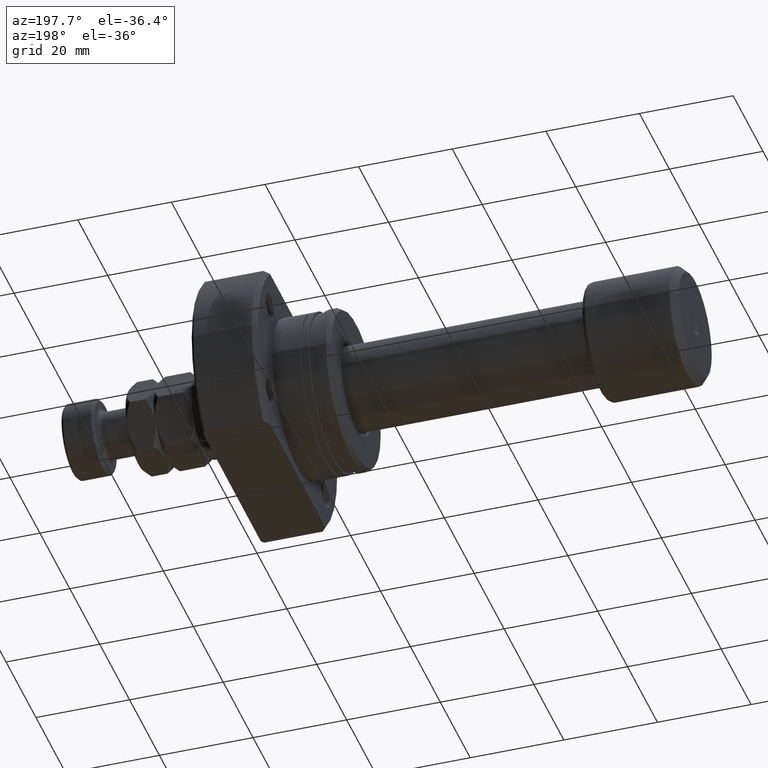
[diagram: clean part render]
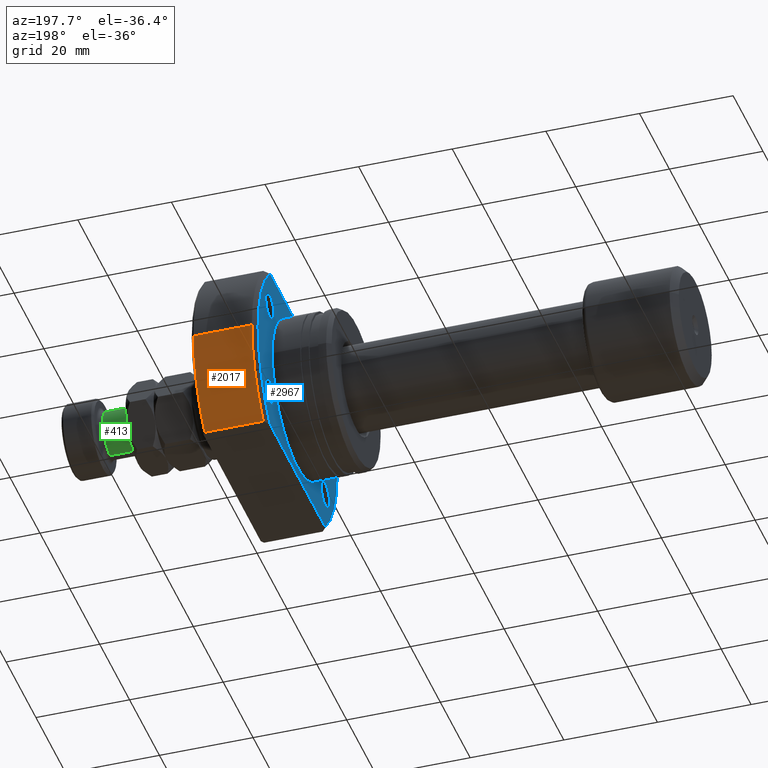
[diagram: same view with three faces highlighted in distinct colors, each labeled with its STEP entity id]
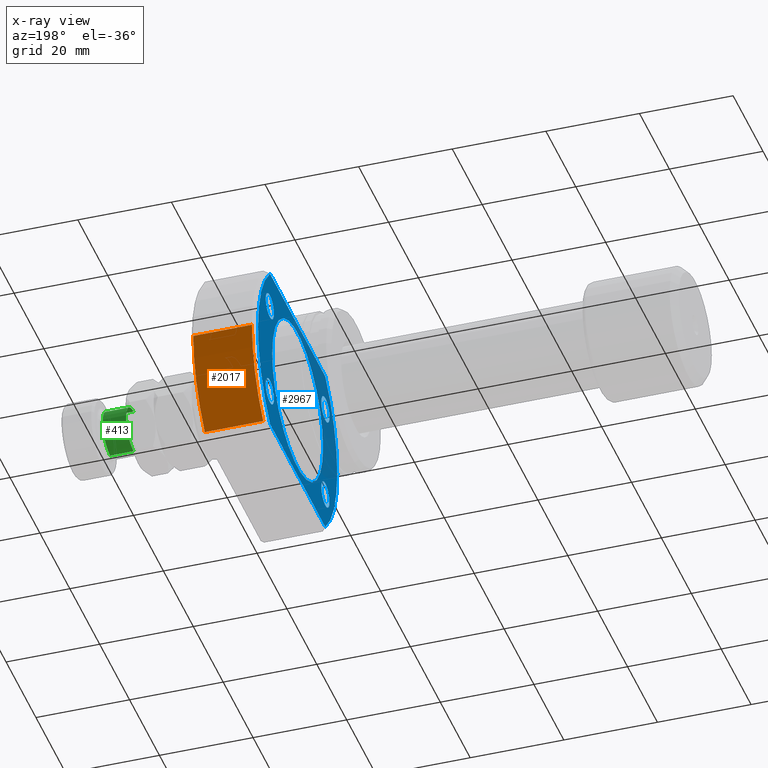
[diagram: x-ray of the same camera — body ghosted, the three highlighted faces saturated]
A machine part, auxiliary view with three faces highlighted in distinct colors.
The next image is the same camera in x-ray (body ghosted, the three faces saturated) — at least one of them is partly hidden behind the body in this view.
Their STEP definitions:

[orange] entity #2017 — the highlighted cylindrical surface (partial cylindrical patch) has radius 27.5 mm, axis along (1, 0, 0).
#44 = EDGE_CURVE ( 'NONE', #3843, #1954, #2917, .T. ) ;
#141 = CYLINDRICAL_SURFACE ( 'NONE', #4680, 27.49999999999991473 ) ;
#571 = CARTESIAN_POINT ( 'NONE',  ( 26.00000000000008882, 2.403080511534438786E-16, 0.000000000000000000 ) ) ;
#851 = CARTESIAN_POINT ( 'NONE',  ( 13.49999999999998757, 19.88089535207129543, -18.99999999999999645 ) ) ;
#915 = AXIS2_PLACEMENT_3D ( 'NONE', #571, #4804, #4418 ) ;
#1309 = ORIENTED_EDGE ( 'NONE', *, *, #4137, .F. ) ;
#1326 = EDGE_CURVE ( 'NONE', #1954, #3507, #2685, .T. ) ;
#1370 = CARTESIAN_POINT ( 'NONE',  ( -2.151057110211240797E-13, 19.88089535207168268, -18.99999999999999645 ) ) ;
#1509 = AXIS2_PLACEMENT_3D ( 'NONE', #2397, #3959, #1712 ) ;
#1575 = DIRECTION ( 'NONE',  ( 0.000000000000000000, 1.000000000000000000, 0.000000000000000000 ) ) ;
#1695 = CIRCLE ( 'NONE', #915, 27.49999999999991473 ) ;
#1712 = DIRECTION ( 'NONE',  ( 0.000000000000000000, 1.000000000000000000, 0.000000000000000000 ) ) ;
#1738 = CARTESIAN_POINT ( 'NONE',  ( 26.00000000000007461, 19.88089535207093306, -18.99999999999999645 ) ) ;
#1767 = VERTEX_POINT ( 'NONE', #1738 ) ;
#1893 = VECTOR ( 'NONE', #2861, 1000.000000000000000 ) ;
#1945 = DIRECTION ( 'NONE',  ( 1.000000000000000000, 9.242617352055502386E-18, -0.000000000000000000 ) ) ;
#1954 = VERTEX_POINT ( 'NONE', #2015 ) ;
#2015 = CARTESIAN_POINT ( 'NONE',  ( 13.49999999999999112, 27.49999999999991473, 0.000000000000000000 ) ) ;
#2017 = ADVANCED_FACE ( 'NONE', ( #4658 ), #141, .T. ) ;
#2281 = ORIENTED_EDGE ( 'NONE', *, *, #3607, .F. ) ;
#2397 = CARTESIAN_POINT ( 'NONE',  ( 13.49999999999999112, 1.247753342527491952E-16, 0.000000000000000000 ) ) ;
#2685 = LINE ( 'NONE', #4198, #3482 ) ;
#2781 = CARTESIAN_POINT ( 'NONE',  ( 26.50000000000000711, 2.449293598294708880E-16, 0.000000000000000000 ) ) ;
#2861 = DIRECTION ( 'NONE',  ( 1.000000000000000000, -2.886466111666351885E-14, -0.000000000000000000 ) ) ;
#2917 = CIRCLE ( 'NONE', #1509, 27.49999999999991473 ) ;
#3001 = DIRECTION ( 'NONE',  ( 1.000000000000000000, 9.242617352055502386E-18, -0.000000000000000000 ) ) ;
#3161 = ORIENTED_EDGE ( 'NONE', *, *, #44, .T. ) ;
#3482 = VECTOR ( 'NONE', #3001, 1000.000000000000000 ) ;
#3507 = VERTEX_POINT ( 'NONE', #4271 ) ;
#3526 = ORIENTED_EDGE ( 'NONE', *, *, #1326, .T. ) ;
#3607 = EDGE_CURVE ( 'NONE', #1767, #3507, #1695, .T. ) ;
#3666 = EDGE_LOOP ( 'NONE', ( #3161, #3526, #2281, #1309 ) ) ;
#3843 = VERTEX_POINT ( 'NONE', #851 ) ;
#3959 = DIRECTION ( 'NONE',  ( 1.000000000000000000, 9.242617352055502386E-18, -0.000000000000000000 ) ) ;
#4137 = EDGE_CURVE ( 'NONE', #3843, #1767, #4740, .T. ) ;
#4198 = CARTESIAN_POINT ( 'NONE',  ( 26.50000000000000711, 27.49999999999991473, 0.000000000000000000 ) ) ;
#4271 = CARTESIAN_POINT ( 'NONE',  ( 26.00000000000008882, 27.49999999999991473, 0.000000000000000000 ) ) ;
#4418 = DIRECTION ( 'NONE',  ( 0.000000000000000000, 1.000000000000000000, 0.000000000000000000 ) ) ;
#4658 = FACE_OUTER_BOUND ( 'NONE', #3666, .T. ) ;
#4680 = AXIS2_PLACEMENT_3D ( 'NONE', #2781, #1945, #1575 ) ;
#4740 = LINE ( 'NONE', #1370, #1893 ) ;
#4804 = DIRECTION ( 'NONE',  ( 1.000000000000000000, 9.242617352055502386E-18, -0.000000000000000000 ) ) ;

[blue] entity #2967 — the highlighted planar face has unit normal (1, 0, 0).
#37 = VERTEX_POINT ( 'NONE', #3933 ) ;
#38 = AXIS2_PLACEMENT_3D ( 'NONE', #3552, #3480, #1635 ) ;
#51 = DIRECTION ( 'NONE',  ( 1.000000000000000000, 9.242617352055502386E-18, -0.000000000000000000 ) ) ;
#177 = VECTOR ( 'NONE', #2135, 1000.000000000000000 ) ;
#185 = CIRCLE ( 'NONE', #4210, 2.749999999999999112 ) ;
#216 = DIRECTION ( 'NONE',  ( 1.000000000000000000, 9.242617352055502386E-18, -0.000000000000000000 ) ) ;
#249 = CARTESIAN_POINT ( 'NONE',  ( 12.50000000000000355, 1.155327169006938207E-16, 0.000000000000000000 ) ) ;
#281 = DIRECTION ( 'NONE',  ( 0.000000000000000000, 1.000000000000000000, 0.000000000000000000 ) ) ;
#312 = DIRECTION ( 'NONE',  ( 0.000000000000000000, 1.000000000000000000, 0.000000000000000000 ) ) ;
#333 = CIRCLE ( 'NONE', #3399, 2.749999999999999112 ) ;
#377 = CARTESIAN_POINT ( 'NONE',  ( 12.50000000000000355, 18.59999999999964260, -10.75000000000000000 ) ) ;
#453 = VERTEX_POINT ( 'NONE', #569 ) ;
#500 = EDGE_CURVE ( 'NONE', #4845, #880, #3083, .T. ) ;
#506 = AXIS2_PLACEMENT_3D ( 'NONE', #4503, #2724, #1130 ) ;
#509 = CIRCLE ( 'NONE', #587, 2.749999999999999112 ) ;
#510 = ORIENTED_EDGE ( 'NONE', *, *, #4294, .F. ) ;
#530 = DIRECTION ( 'NONE',  ( 1.000000000000000000, 9.242617352055502386E-18, -0.000000000000000000 ) ) ;
#545 = CARTESIAN_POINT ( 'NONE',  ( 12.50000000000000178, -16.99999999999999645, 2.081899558550499885E-15 ) ) ;
#569 = CARTESIAN_POINT ( 'NONE',  ( 12.50000000000000355, -15.85000000000036380, -10.75000000000000000 ) ) ;
#577 = FACE_BOUND ( 'NONE', #1256, .T. ) ;
#586 = ORIENTED_EDGE ( 'NONE', *, *, #4793, .T. ) ;
#587 = AXIS2_PLACEMENT_3D ( 'NONE', #377, #1931, #1952 ) ;
#653 = EDGE_CURVE ( 'NONE', #2892, #1676, #2219, .T. ) ;
#697 = DIRECTION ( 'NONE',  ( 1.000000000000000000, 9.242617352055502386E-18, -0.000000000000000000 ) ) ;
#763 = DIRECTION ( 'NONE',  ( 0.000000000000000000, 1.000000000000000000, 0.000000000000000000 ) ) ;
#771 = CARTESIAN_POINT ( 'NONE',  ( 12.50000000000000178, 16.99999999999999645, 0.000000000000000000 ) ) ;
#836 = EDGE_CURVE ( 'NONE', #2854, #4162, #333, .T. ) ;
#877 = AXIS2_PLACEMENT_3D ( 'NONE', #4856, #51, #3348 ) ;
#880 = VERTEX_POINT ( 'NONE', #545 ) ;
#884 = ORIENTED_EDGE ( 'NONE', *, *, #1437, .T. ) ;
#889 = CIRCLE ( 'NONE', #1445, 26.49999999999993250 ) ;
#903 = FACE_OUTER_BOUND ( 'NONE', #2199, .T. ) ;
#904 = CARTESIAN_POINT ( 'NONE',  ( 12.50000000000000355, 15.84999999999964260, 10.75000000000000000 ) ) ;
#906 = CARTESIAN_POINT ( 'NONE',  ( 12.50000000000000355, -18.60000000000036380, 10.75000000000000000 ) ) ;
#911 = ORIENTED_EDGE ( 'NONE', *, *, #1939, .F. ) ;
#982 = VECTOR ( 'NONE', #2339, 1000.000000000000000 ) ;
#1030 = CARTESIAN_POINT ( 'NONE',  ( 12.50000000000000355, -18.60000000000036380, 10.75000000000000000 ) ) ;
#1068 = AXIS2_PLACEMENT_3D ( 'NONE', #1030, #697, #281 ) ;
#1070 = CARTESIAN_POINT ( 'NONE',  ( 12.50000000000000355, 1.155327169006938207E-16, 0.000000000000000000 ) ) ;
#1130 = DIRECTION ( 'NONE',  ( 0.000000000000000000, 1.000000000000000000, 0.000000000000000000 ) ) ;
#1150 = CIRCLE ( 'NONE', #1068, 2.749999999999999112 ) ;
#1159 = ORIENTED_EDGE ( 'NONE', *, *, #2060, .T. ) ;
#1167 = EDGE_CURVE ( 'NONE', #1676, #3511, #889, .T. ) ;
#1256 = EDGE_LOOP ( 'NONE', ( #2087, #1736 ) ) ;
#1271 = PLANE ( 'NONE',  #38 ) ;
#1281 = CIRCLE ( 'NONE', #3549, 2.749999999999999112 ) ;
#1287 = EDGE_CURVE ( 'NONE', #880, #4845, #3890, .T. ) ;
#1390 = CARTESIAN_POINT ( 'NONE',  ( 12.50000000000000355, 18.59999999999964260, 10.75000000000000000 ) ) ;
#1437 = EDGE_CURVE ( 'NONE', #2892, #2502, #3669, .T. ) ;
#1445 = AXIS2_PLACEMENT_3D ( 'NONE', #249, #1757, #3257 ) ;
#1482 = CARTESIAN_POINT ( 'NONE',  ( 12.50000000000000355, 15.84999999999964260, -10.75000000000000000 ) ) ;
#1500 = VERTEX_POINT ( 'NONE', #2627 ) ;
#1521 = CARTESIAN_POINT ( 'NONE',  ( 12.50000000000000355, 21.34999999999963904, -10.75000000000000000 ) ) ;
#1537 = DIRECTION ( 'NONE',  ( 0.000000000000000000, 1.000000000000000000, 0.000000000000000000 ) ) ;
#1559 = CARTESIAN_POINT ( 'NONE',  ( 12.50000000000000178, 1.155327169006937960E-16, 0.000000000000000000 ) ) ;
#1635 = DIRECTION ( 'NONE',  ( -9.242617352055502386E-18, 1.000000000000000000, 0.000000000000000000 ) ) ;
#1637 = CARTESIAN_POINT ( 'NONE',  ( 12.50000000000000355, -18.60000000000036380, -10.75000000000000000 ) ) ;
#1653 = CARTESIAN_POINT ( 'NONE',  ( 12.50000000000000355, 18.47295320191106072, 19.00000000000001066 ) ) ;
#1661 = DIRECTION ( 'NONE',  ( 1.000000000000000000, 9.242617352055502386E-18, -0.000000000000000000 ) ) ;
#1676 = VERTEX_POINT ( 'NONE', #4186 ) ;
#1702 = DIRECTION ( 'NONE',  ( 0.000000000000000000, 1.000000000000000000, 0.000000000000000000 ) ) ;
#1736 = ORIENTED_EDGE ( 'NONE', *, *, #2264, .T. ) ;
#1746 = AXIS2_PLACEMENT_3D ( 'NONE', #1969, #4223, #2413 ) ;
#1757 = DIRECTION ( 'NONE',  ( 1.000000000000000000, 9.242617352055502386E-18, -0.000000000000000000 ) ) ;
#1864 = DIRECTION ( 'NONE',  ( 0.000000000000000000, 1.000000000000000000, 0.000000000000000000 ) ) ;
#1898 = DIRECTION ( 'NONE',  ( 1.000000000000000000, 9.242617352055502386E-18, -0.000000000000000000 ) ) ;
#1931 = DIRECTION ( 'NONE',  ( 1.000000000000000000, 9.242617352055502386E-18, -0.000000000000000000 ) ) ;
#1939 = EDGE_CURVE ( 'NONE', #3511, #3192, #3536, .T. ) ;
#1952 = DIRECTION ( 'NONE',  ( 0.000000000000000000, 1.000000000000000000, 0.000000000000000000 ) ) ;
#1969 = CARTESIAN_POINT ( 'NONE',  ( 12.50000000000000178, 1.155327169006937960E-16, 0.000000000000000000 ) ) ;
#2026 = FACE_BOUND ( 'NONE', #3859, .T. ) ;
#2060 = EDGE_CURVE ( 'NONE', #3305, #453, #185, .T. ) ;
#2087 = ORIENTED_EDGE ( 'NONE', *, *, #4547, .T. ) ;
#2135 = DIRECTION ( 'NONE',  ( 9.242617352055502386E-18, -1.000000000000000000, 0.000000000000000000 ) ) ;
#2156 = CARTESIAN_POINT ( 'NONE',  ( 12.50000000000000355, -18.47295320191106072, -19.00000000000001066 ) ) ;
#2199 = EDGE_LOOP ( 'NONE', ( #911, #3334, #4508, #884, #510 ) ) ;
#2219 = CIRCLE ( 'NONE', #4431, 26.49999999999993250 ) ;
#2264 = EDGE_CURVE ( 'NONE', #2355, #1500, #3412, .T. ) ;
#2274 = EDGE_LOOP ( 'NONE', ( #586, #1159 ) ) ;
#2292 = AXIS2_PLACEMENT_3D ( 'NONE', #1637, #1661, #3506 ) ;
#2339 = DIRECTION ( 'NONE',  ( 9.242617352055502386E-18, -1.000000000000000000, 0.000000000000000000 ) ) ;
#2355 = VERTEX_POINT ( 'NONE', #904 ) ;
#2407 = EDGE_LOOP ( 'NONE', ( #3738, #2442 ) ) ;
#2413 = DIRECTION ( 'NONE',  ( 0.000000000000000000, 1.000000000000000000, 0.000000000000000000 ) ) ;
#2442 = ORIENTED_EDGE ( 'NONE', *, *, #2689, .T. ) ;
#2445 = CIRCLE ( 'NONE', #877, 26.49999999999993250 ) ;
#2450 = ORIENTED_EDGE ( 'NONE', *, *, #500, .T. ) ;
#2481 = EDGE_CURVE ( 'NONE', #37, #4014, #1150, .T. ) ;
#2502 = VERTEX_POINT ( 'NONE', #2156 ) ;
#2550 = ORIENTED_EDGE ( 'NONE', *, *, #2481, .T. ) ;
#2627 = CARTESIAN_POINT ( 'NONE',  ( 12.50000000000000355, 21.34999999999963904, 10.75000000000000000 ) ) ;
#2657 = DIRECTION ( 'NONE',  ( 1.000000000000000000, 9.242617352055502386E-18, -0.000000000000000000 ) ) ;
#2688 = CIRCLE ( 'NONE', #2292, 2.749999999999999112 ) ;
#2689 = EDGE_CURVE ( 'NONE', #4162, #2854, #509, .T. ) ;
#2724 = DIRECTION ( 'NONE',  ( 1.000000000000000000, 9.242617352055502386E-18, -0.000000000000000000 ) ) ;
#2793 = FACE_BOUND ( 'NONE', #3944, .T. ) ;
#2854 = VERTEX_POINT ( 'NONE', #1521 ) ;
#2892 = VERTEX_POINT ( 'NONE', #3764 ) ;
#2967 = ADVANCED_FACE ( 'NONE', ( #577, #2793, #3133, #3504, #2026, #903 ), #1271, .F. ) ;
#2972 = CARTESIAN_POINT ( 'NONE',  ( 12.50000000000000355, 18.59999999999964260, -10.75000000000000000 ) ) ;
#3083 = CIRCLE ( 'NONE', #1746, 16.99999999999999645 ) ;
#3133 = FACE_BOUND ( 'NONE', #2274, .T. ) ;
#3192 = VERTEX_POINT ( 'NONE', #4450 ) ;
#3257 = DIRECTION ( 'NONE',  ( 0.000000000000000000, 1.000000000000000000, 0.000000000000000000 ) ) ;
#3305 = VERTEX_POINT ( 'NONE', #4522 ) ;
#3334 = ORIENTED_EDGE ( 'NONE', *, *, #1167, .F. ) ;
#3348 = DIRECTION ( 'NONE',  ( 0.000000000000000000, 1.000000000000000000, 0.000000000000000000 ) ) ;
#3399 = AXIS2_PLACEMENT_3D ( 'NONE', #2972, #2657, #763 ) ;
#3412 = CIRCLE ( 'NONE', #506, 2.749999999999999112 ) ;
#3480 = DIRECTION ( 'NONE',  ( 1.000000000000000000, 9.242617352055502386E-18, -0.000000000000000000 ) ) ;
#3504 = FACE_BOUND ( 'NONE', #2407, .T. ) ;
#3506 = DIRECTION ( 'NONE',  ( 0.000000000000000000, 1.000000000000000000, 0.000000000000000000 ) ) ;
#3511 = VERTEX_POINT ( 'NONE', #1653 ) ;
#3536 = LINE ( 'NONE', #4687, #982 ) ;
#3549 = AXIS2_PLACEMENT_3D ( 'NONE', #906, #530, #4155 ) ;
#3552 = CARTESIAN_POINT ( 'NONE',  ( 12.50000000000000355, -16.99999999999999645, 0.000000000000000000 ) ) ;
#3669 = LINE ( 'NONE', #4018, #177 ) ;
#3695 = DIRECTION ( 'NONE',  ( 1.000000000000000000, 9.242617352055502386E-18, -0.000000000000000000 ) ) ;
#3710 = CARTESIAN_POINT ( 'NONE',  ( 12.50000000000000355, -18.60000000000036380, -10.75000000000000000 ) ) ;
#3738 = ORIENTED_EDGE ( 'NONE', *, *, #836, .T. ) ;
#3744 = ORIENTED_EDGE ( 'NONE', *, *, #1287, .T. ) ;
#3764 = CARTESIAN_POINT ( 'NONE',  ( 12.50000000000000355, 18.47295320191106072, -19.00000000000001066 ) ) ;
#3859 = EDGE_LOOP ( 'NONE', ( #2450, #3744 ) ) ;
#3890 = CIRCLE ( 'NONE', #4671, 16.99999999999999645 ) ;
#3919 = ORIENTED_EDGE ( 'NONE', *, *, #4803, .T. ) ;
#3933 = CARTESIAN_POINT ( 'NONE',  ( 12.50000000000000355, -21.35000000000036025, 10.75000000000000000 ) ) ;
#3944 = EDGE_LOOP ( 'NONE', ( #3919, #2550 ) ) ;
#4014 = VERTEX_POINT ( 'NONE', #4446 ) ;
#4018 = CARTESIAN_POINT ( 'NONE',  ( 12.50000000000000355, -16.99999999999999645, -19.00000000000001066 ) ) ;
#4104 = AXIS2_PLACEMENT_3D ( 'NONE', #1390, #4396, #1702 ) ;
#4155 = DIRECTION ( 'NONE',  ( 0.000000000000000000, 1.000000000000000000, 0.000000000000000000 ) ) ;
#4162 = VERTEX_POINT ( 'NONE', #1482 ) ;
#4186 = CARTESIAN_POINT ( 'NONE',  ( 12.50000000000000355, 26.49999999999993250, 0.000000000000000000 ) ) ;
#4210 = AXIS2_PLACEMENT_3D ( 'NONE', #3710, #216, #1864 ) ;
#4223 = DIRECTION ( 'NONE',  ( 1.000000000000000000, 9.242617352055502386E-18, -0.000000000000000000 ) ) ;
#4294 = EDGE_CURVE ( 'NONE', #3192, #2502, #2445, .T. ) ;
#4396 = DIRECTION ( 'NONE',  ( 1.000000000000000000, 9.242617352055502386E-18, -0.000000000000000000 ) ) ;
#4425 = CIRCLE ( 'NONE', #4104, 2.749999999999999112 ) ;
#4431 = AXIS2_PLACEMENT_3D ( 'NONE', #1070, #3695, #312 ) ;
#4446 = CARTESIAN_POINT ( 'NONE',  ( 12.50000000000000355, -15.85000000000036380, 10.75000000000000000 ) ) ;
#4450 = CARTESIAN_POINT ( 'NONE',  ( 12.50000000000000355, -18.47295320191106072, 19.00000000000001066 ) ) ;
#4503 = CARTESIAN_POINT ( 'NONE',  ( 12.50000000000000355, 18.59999999999964260, 10.75000000000000000 ) ) ;
#4508 = ORIENTED_EDGE ( 'NONE', *, *, #653, .F. ) ;
#4522 = CARTESIAN_POINT ( 'NONE',  ( 12.50000000000000355, -21.35000000000036025, -10.75000000000000000 ) ) ;
#4547 = EDGE_CURVE ( 'NONE', #1500, #2355, #4425, .T. ) ;
#4671 = AXIS2_PLACEMENT_3D ( 'NONE', #1559, #1898, #1537 ) ;
#4687 = CARTESIAN_POINT ( 'NONE',  ( 12.50000000000000355, -16.99999999999999645, 19.00000000000001066 ) ) ;
#4793 = EDGE_CURVE ( 'NONE', #453, #3305, #2688, .T. ) ;
#4803 = EDGE_CURVE ( 'NONE', #4014, #37, #1281, .T. ) ;
#4845 = VERTEX_POINT ( 'NONE', #771 ) ;
#4856 = CARTESIAN_POINT ( 'NONE',  ( 12.50000000000000355, 1.155327169006938207E-16, 0.000000000000000000 ) ) ;

[green] entity #413 — the highlighted cylindrical surface (edge-blend (fillet) strip) has radius 5 mm, axis along (-1, -0, 0).
#20 = CIRCLE ( 'NONE', #2300, 5.000000000000000000 ) ;
#360 = CARTESIAN_POINT ( 'NONE',  ( -5.000000000000000000, 0.000000000000000000, 20.00000000000000000 ) ) ;
#413 = ADVANCED_FACE ( 'NONE', ( #3495 ), #1318, .T. ) ;
#818 = CARTESIAN_POINT ( 'NONE',  ( 5.000000000000000000, 6.123233995736766282E-16, 20.00000000000000000 ) ) ;
#921 = EDGE_CURVE ( 'NONE', #2046, #1988, #20, .T. ) ;
#1169 = LINE ( 'NONE', #1481, #4608 ) ;
#1185 = VERTEX_POINT ( 'NONE', #1395 ) ;
#1318 = CYLINDRICAL_SURFACE ( 'NONE', #4192, 5.000000000000000000 ) ;
#1395 = CARTESIAN_POINT ( 'NONE',  ( -5.000000000000000000, 0.000000000000000000, 15.00000000000000000 ) ) ;
#1481 = CARTESIAN_POINT ( 'NONE',  ( -5.000000000000000000, 0.000000000000000000, 21.00000000000000000 ) ) ;
#1526 = DIRECTION ( 'NONE',  ( 0.000000000000000000, -0.000000000000000000, 1.000000000000000000 ) ) ;
#1555 = EDGE_CURVE ( 'NONE', #2592, #1185, #4368, .T. ) ;
#1731 = CARTESIAN_POINT ( 'NONE',  ( 0.000000000000000000, 0.000000000000000000, 20.00000000000000000 ) ) ;
#1874 = LINE ( 'NONE', #2607, #4766 ) ;
#1988 = VERTEX_POINT ( 'NONE', #818 ) ;
#2020 = CARTESIAN_POINT ( 'NONE',  ( 0.000000000000000000, 0.000000000000000000, 21.00000000000000000 ) ) ;
#2046 = VERTEX_POINT ( 'NONE', #360 ) ;
#2232 = AXIS2_PLACEMENT_3D ( 'NONE', #3712, #1526, #3768 ) ;
#2300 = AXIS2_PLACEMENT_3D ( 'NONE', #1731, #3184, #4352 ) ;
#2592 = VERTEX_POINT ( 'NONE', #3033 ) ;
#2607 = CARTESIAN_POINT ( 'NONE',  ( 5.000000000000000000, 6.123233995736766282E-16, 21.00000000000000000 ) ) ;
#2734 = EDGE_CURVE ( 'NONE', #2046, #1185, #1169, .T. ) ;
#2779 = EDGE_CURVE ( 'NONE', #1988, #2592, #1874, .T. ) ;
#2786 = DIRECTION ( 'NONE',  ( -1.000000000000000000, 0.000000000000000000, 0.000000000000000000 ) ) ;
#2804 = ORIENTED_EDGE ( 'NONE', *, *, #921, .T. ) ;
#2948 = EDGE_LOOP ( 'NONE', ( #2804, #3455, #3942, #3997 ) ) ;
#3033 = CARTESIAN_POINT ( 'NONE',  ( 5.000000000000000000, 6.123233995736766282E-16, 15.00000000000000000 ) ) ;
#3184 = DIRECTION ( 'NONE',  ( -0.000000000000000000, -0.000000000000000000, -1.000000000000000000 ) ) ;
#3423 = DIRECTION ( 'NONE',  ( -0.000000000000000000, -0.000000000000000000, -1.000000000000000000 ) ) ;
#3455 = ORIENTED_EDGE ( 'NONE', *, *, #2779, .T. ) ;
#3495 = FACE_OUTER_BOUND ( 'NONE', #2948, .T. ) ;
#3518 = DIRECTION ( 'NONE',  ( -0.000000000000000000, -0.000000000000000000, -1.000000000000000000 ) ) ;
#3712 = CARTESIAN_POINT ( 'NONE',  ( 0.000000000000000000, 0.000000000000000000, 15.00000000000000000 ) ) ;
#3768 = DIRECTION ( 'NONE',  ( 1.000000000000000000, 0.000000000000000000, 0.000000000000000000 ) ) ;
#3942 = ORIENTED_EDGE ( 'NONE', *, *, #1555, .T. ) ;
#3997 = ORIENTED_EDGE ( 'NONE', *, *, #2734, .F. ) ;
#4192 = AXIS2_PLACEMENT_3D ( 'NONE', #2020, #3518, #2786 ) ;
#4352 = DIRECTION ( 'NONE',  ( 1.000000000000000000, 0.000000000000000000, 0.000000000000000000 ) ) ;
#4368 = CIRCLE ( 'NONE', #2232, 5.000000000000000000 ) ;
#4488 = DIRECTION ( 'NONE',  ( -0.000000000000000000, -0.000000000000000000, -1.000000000000000000 ) ) ;
#4608 = VECTOR ( 'NONE', #3423, 1000.000000000000000 ) ;
#4766 = VECTOR ( 'NONE', #4488, 1000.000000000000000 ) ;